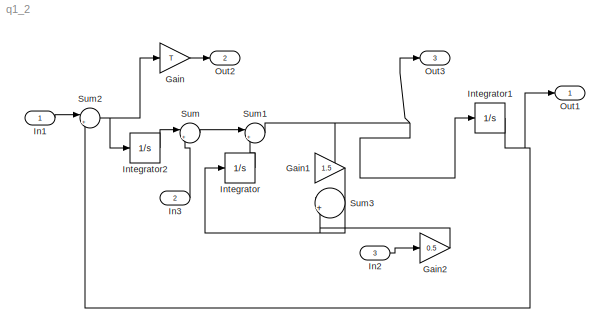
MODEL q1_2
KIND model
BLOCK [Gain] Gain
  Gain = T
  OutDataTypeStr = Inherit: Inherit via internal rule
  ParamDataTypeStr = Inherit: Inherit via internal rule
  SID = 11
  SaturateOnIntegerOverflow = off
BLOCK [Gain] Gain1
  Gain = 1.5
  OutDataTypeStr = Inherit: Inherit via internal rule
  ParamDataTypeStr = Inherit: Inherit via internal rule
  SID = 15
  SaturateOnIntegerOverflow = off
BLOCK [Gain] Gain2
  Gain = 0.5
  OutDataTypeStr = Inherit: Inherit via internal rule
  ParamDataTypeStr = Inherit: Inherit via internal rule
  SID = 17
  SaturateOnIntegerOverflow = off
BLOCK [Inport] In1
  IconDisplay = Port number
  SID = 1
BLOCK [Inport] In2
  IconDisplay = Port number
  Port = 3
  SID = 5
BLOCK [Inport] In3
  IconDisplay = Port number
  Port = 2
  SID = 9
BLOCK [Integrator] Integrator
  Ports = [1, 1]
  SID = 2
BLOCK [Integrator] Integrator1
  Ports = [1, 1]
  SID = 8
BLOCK [Integrator] Integrator2
  Ports = [1, 1]
  SID = 14
BLOCK [Outport] Out1
  IconDisplay = Port number
  SID = 6
BLOCK [Outport] Out2
  IconDisplay = Port number
  Port = 2
  SID = 7
BLOCK [Outport] Out3
  IconDisplay = Port number
  Port = 3
  SID = 10
BLOCK [Sum] Sum
  IconShape = round
  InputSameDT = off
  Inputs = |++
  OutDataTypeStr = Inherit: Inherit via internal rule
  Ports = [2, 1]
  SID = 3
  SaturateOnIntegerOverflow = off
BLOCK [Sum] Sum1
  IconShape = round
  InputSameDT = off
  Inputs = |+-
  OutDataTypeStr = Inherit: Inherit via internal rule
  Ports = [2, 1]
  SID = 4
  SaturateOnIntegerOverflow = off
BLOCK [Sum] Sum2
  IconShape = round
  InputSameDT = off
  Inputs = |+-
  OutDataTypeStr = Inherit: Inherit via internal rule
  Ports = [2, 1]
  SID = 13
  SaturateOnIntegerOverflow = off
BLOCK [Sum] Sum3
  IconShape = round
  InputSameDT = off
  Inputs = |++
  OutDataTypeStr = Inherit: Inherit via internal rule
  Ports = [2, 1]
  SID = 16
  SaturateOnIntegerOverflow = off
LINE Gain1:1 -> Sum3:1
LINE Gain2:1 -> Sum3:2
LINE Gain:1 -> Out2:1
LINE In1:1 -> Sum2:1
LINE In2:1 -> Gain2:1
LINE In3:1 -> Sum:2
NET Integrator1:1 -> Out1:1, Sum2:2
LINE Integrator2:1 -> Sum:1
LINE Integrator:1 -> Sum1:2
NET Sum1:1 -> Gain1:1, Integrator1:1, Out3:1
NET Sum2:1 -> Gain:1, Integrator2:1
LINE Sum3:1 -> Integrator:1
LINE Sum:1 -> Sum1:1
note: NET lines group one-source signal fan-out (src -> all destinations, sorted); 1:1 wires keep LINE
